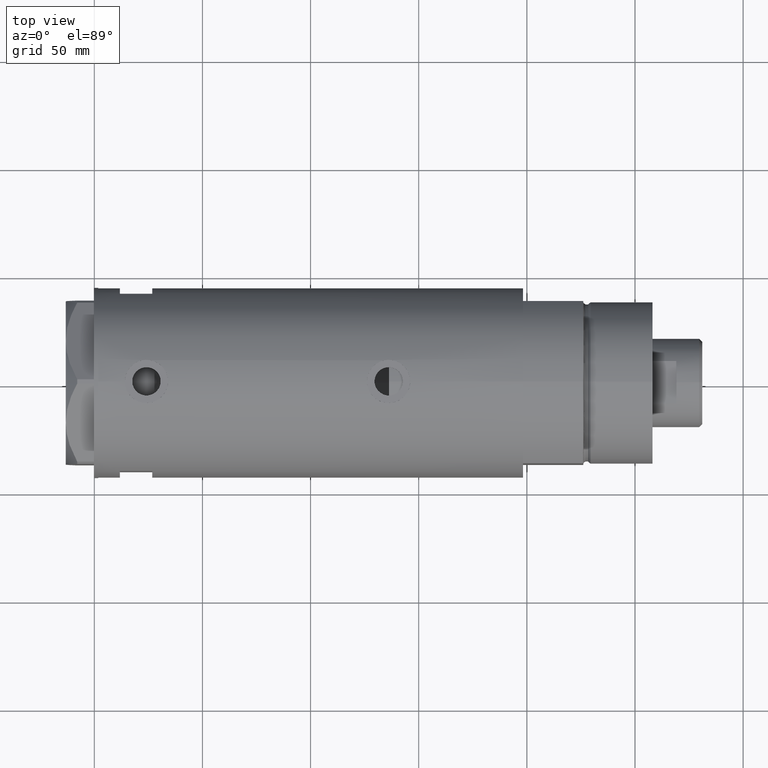
[diagram: clean part render]
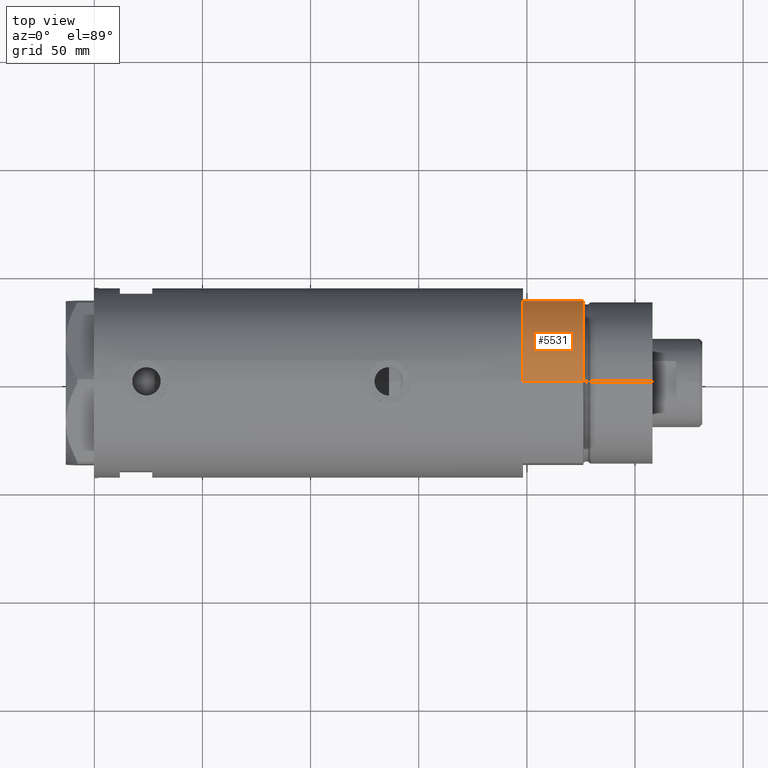
[diagram: same view with one face highlighted and labeled with its STEP entity id]
A machine part, top view. The second image highlights one B-rep face of the part: STEP entity #5531.
In plain terms, the highlighted cylindrical surface (partial cylindrical patch) has radius 44 mm, axis along (-1, -0, 0).
Its self-contained STEP definition (entity closure, byte-faithful):
#320 = VERTEX_POINT ( 'NONE', #1977 ) ;
#505 = DIRECTION ( 'NONE',  ( -0.000000000000000000, -0.000000000000000000, 1.000000000000000000 ) ) ;
#641 = DIRECTION ( 'NONE',  ( 0.000000000000000000, 0.000000000000000000, 1.000000000000000000 ) ) ;
#843 = EDGE_LOOP ( 'NONE', ( #1800, #2914, #1965, #4962 ) ) ;
#850 = EDGE_CURVE ( 'NONE', #2840, #859, #3228, .T. ) ;
#859 = VERTEX_POINT ( 'NONE', #5506 ) ;
#869 = CIRCLE ( 'NONE', #2315, 44.00000000000000000 ) ;
#981 = EDGE_CURVE ( 'NONE', #320, #3262, #3288, .T. ) ;
#1800 = ORIENTED_EDGE ( 'NONE', *, *, #850, .F. ) ;
#1965 = ORIENTED_EDGE ( 'NONE', *, *, #981, .F. ) ;
#1977 = CARTESIAN_POINT ( 'NONE',  ( -23.01629857296780557, 37.50000000000000000, 0.000000000000000000 ) ) ;
#2188 = EDGE_CURVE ( 'NONE', #3262, #2840, #4259, .T. ) ;
#2315 = AXIS2_PLACEMENT_3D ( 'NONE', #4073, #2761, #5434 ) ;
#2484 = DIRECTION ( 'NONE',  ( 1.000000000000000000, 0.000000000000000000, 0.000000000000000000 ) ) ;
#2761 = DIRECTION ( 'NONE',  ( 0.000000000000000000, 0.000000000000000000, 1.000000000000000000 ) ) ;
#2840 = VERTEX_POINT ( 'NONE', #3227 ) ;
#2914 = ORIENTED_EDGE ( 'NONE', *, *, #2188, .F. ) ;
#3174 = DIRECTION ( 'NONE',  ( -0.000000000000000000, -0.000000000000000000, -1.000000000000000000 ) ) ;
#3227 = CARTESIAN_POINT ( 'NONE',  ( -44.00000000000000000, 0.000000000000000000, 27.89999999999999858 ) ) ;
#3228 = LINE ( 'NONE', #3654, #5588 ) ;
#3262 = VERTEX_POINT ( 'NONE', #4228 ) ;
#3288 = LINE ( 'NONE', #5153, #4733 ) ;
#3573 = CYLINDRICAL_SURFACE ( 'NONE', #3885, 44.00000000000000000 ) ;
#3654 = CARTESIAN_POINT ( 'NONE',  ( -44.00000000000000000, 0.000000000000000000, 27.89999999999999858 ) ) ;
#3885 = AXIS2_PLACEMENT_3D ( 'NONE', #4588, #3174, #5031 ) ;
#4073 = CARTESIAN_POINT ( 'NONE',  ( 0.000000000000000000, 0.000000000000000000, 0.000000000000000000 ) ) ;
#4228 = CARTESIAN_POINT ( 'NONE',  ( -23.01629857296780557, 37.50000000000000000, 27.89999999999999858 ) ) ;
#4259 = CIRCLE ( 'NONE', #4933, 44.00000000000000000 ) ;
#4588 = CARTESIAN_POINT ( 'NONE',  ( 0.000000000000000000, 0.000000000000000000, 27.89999999999999858 ) ) ;
#4605 = DIRECTION ( 'NONE',  ( -0.000000000000000000, -0.000000000000000000, -1.000000000000000000 ) ) ;
#4733 = VECTOR ( 'NONE', #505, 1000.000000000000000 ) ;
#4807 = CARTESIAN_POINT ( 'NONE',  ( 0.000000000000000000, 0.000000000000000000, 27.89999999999999858 ) ) ;
#4933 = AXIS2_PLACEMENT_3D ( 'NONE', #4807, #641, #2484 ) ;
#4962 = ORIENTED_EDGE ( 'NONE', *, *, #4981, .T. ) ;
#4975 = FACE_OUTER_BOUND ( 'NONE', #843, .T. ) ;
#4981 = EDGE_CURVE ( 'NONE', #320, #859, #869, .T. ) ;
#5031 = DIRECTION ( 'NONE',  ( -1.000000000000000000, 0.000000000000000000, 0.000000000000000000 ) ) ;
#5153 = CARTESIAN_POINT ( 'NONE',  ( -23.01629857296780557, 37.50000000000000000, 0.000000000000000000 ) ) ;
#5434 = DIRECTION ( 'NONE',  ( 1.000000000000000000, 0.000000000000000000, 0.000000000000000000 ) ) ;
#5506 = CARTESIAN_POINT ( 'NONE',  ( -44.00000000000000000, 0.000000000000000000, 0.000000000000000000 ) ) ;
#5531 = ADVANCED_FACE ( 'NONE', ( #4975 ), #3573, .T. ) ;
#5588 = VECTOR ( 'NONE', #4605, 1000.000000000000000 ) ;